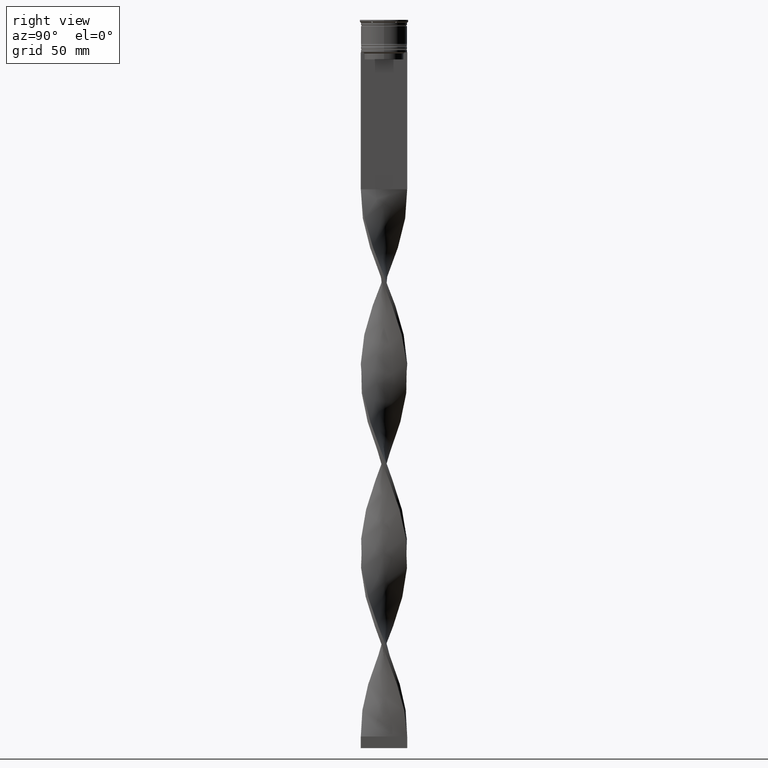
[diagram: clean part render]
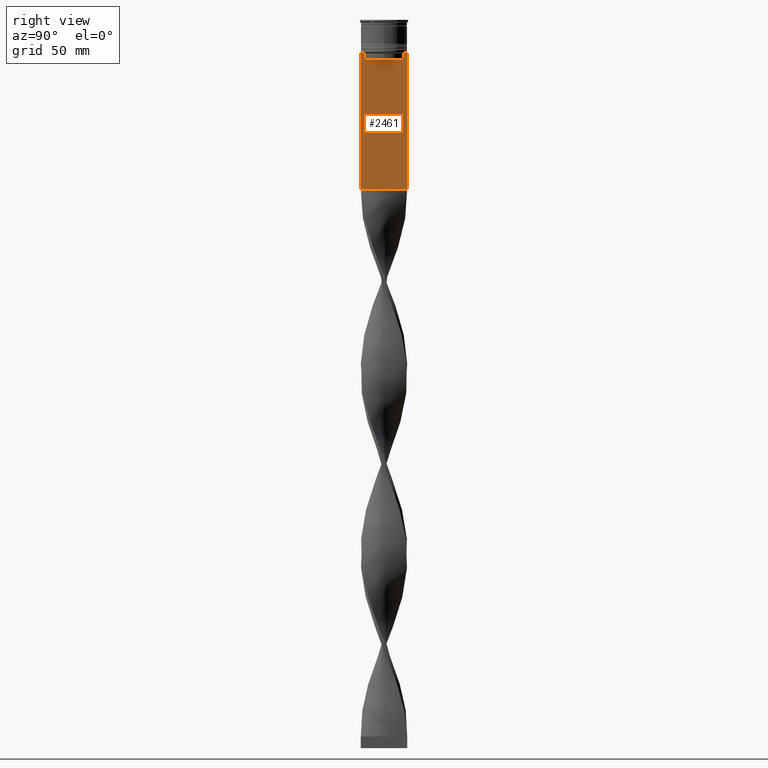
[diagram: same view with one face highlighted and labeled with its STEP entity id]
A machine part, right view. The second image highlights one B-rep face of the part: STEP entity #2461.
In plain terms, the highlighted planar face has unit normal (-1, 0, 0).
Its self-contained STEP definition (entity closure, byte-faithful):
#32 = CARTESIAN_POINT ( 'NONE',  ( 0.7500000000000001110, -8.366450860430608927, -14.50000000000000000 ) ) ;
#61 = ORIENTED_EDGE ( 'NONE', *, *, #165, .T. ) ;
#91 = CARTESIAN_POINT ( 'NONE',  ( 0.7500000000000001110, 8.533766897779925031, -14.33335221373273605 ) ) ;
#112 = CARTESIAN_POINT ( 'NONE',  ( 0.7500000000000001110, 9.999999999999998224, 6.056171120131581098 ) ) ;
#137 = EDGE_CURVE ( 'NONE', #851, #2740, #380, .T. ) ;
#149 = CARTESIAN_POINT ( 'NONE',  ( 0.7500000000000001110, -10.00000000000000533, -73.00000000000001421 ) ) ;
#155 = EDGE_CURVE ( 'NONE', #2356, #2058, #1718, .T. ) ;
#165 = EDGE_CURVE ( 'NONE', #1973, #1635, #2807, .T. ) ;
#166 = CARTESIAN_POINT ( 'NONE',  ( 0.7500000000000001110, -8.366450860430608927, -17.00000000000000000 ) ) ;
#222 = ORIENTED_EDGE ( 'NONE', *, *, #155, .T. ) ;
#265 = EDGE_LOOP ( 'NONE', ( #4197, #1391, #3905, #1926, #1566, #4239, #1360, #222, #3484, #61, #2969, #2828 ) ) ;
#302 = CARTESIAN_POINT ( 'NONE',  ( 0.7500000000000001110, -10.00000000000000533, -73.00000000000001421 ) ) ;
#347 = CARTESIAN_POINT ( 'NONE',  ( 0.7500000000000001110, 8.701063075415250481, -14.16668448247791545 ) ) ;
#380 = LINE ( 'NONE', #4269, #1487 ) ;
#455 = VECTOR ( 'NONE', #2597, 1000.000000000000000 ) ;
#504 = CARTESIAN_POINT ( 'NONE',  ( 0.7500000000000001110, 8.366450860430608927, -17.00000000000000000 ) ) ;
#576 = EDGE_CURVE ( 'NONE', #2723, #1635, #2719, .T. ) ;
#702 = CARTESIAN_POINT ( 'NONE',  ( 0.7500000000000002220, 9.999999999999998224, -73.00000000000001421 ) ) ;
#722 = EDGE_CURVE ( 'NONE', #2740, #1035, #3416, .T. ) ;
#785 = CARTESIAN_POINT ( 'NONE',  ( 0.7500000000000001110, 8.400000000000003908, -17.00000000000000000 ) ) ;
#791 = EDGE_CURVE ( 'NONE', #825, #851, #1834, .T. ) ;
#825 = VERTEX_POINT ( 'NONE', #504 ) ;
#851 = VERTEX_POINT ( 'NONE', #166 ) ;
#863 = DIRECTION ( 'NONE',  ( -1.000000000000000000, 0.000000000000000000, 0.000000000000000000 ) ) ;
#934 = CARTESIAN_POINT ( 'NONE',  ( 0.7500000000000001110, -10.00000000000000533, -14.00000000000000178 ) ) ;
#1011 = DIRECTION ( 'NONE',  ( 0.000000000000000000, -1.000000000000000000, 0.000000000000000000 ) ) ;
#1035 = VERTEX_POINT ( 'NONE', #1238 ) ;
#1187 = EDGE_CURVE ( 'NONE', #4294, #1822, #1705, .T. ) ;
#1190 = CARTESIAN_POINT ( 'NONE',  ( 0.7500000000000001110, 8.366450860430608927, -14.50000000000000000 ) ) ;
#1238 = CARTESIAN_POINT ( 'NONE',  ( 0.7500000000000001110, -8.868342573446296839, -14.00000000000000178 ) ) ;
#1324 = CARTESIAN_POINT ( 'NONE',  ( 0.7500000000000001110, 9.999999999999998224, -14.00000000000000178 ) ) ;
#1360 = ORIENTED_EDGE ( 'NONE', *, *, #1741, .T. ) ;
#1378 = DIRECTION ( 'NONE',  ( 0.000000000000000000, 0.000000000000000000, -1.000000000000000000 ) ) ;
#1391 = ORIENTED_EDGE ( 'NONE', *, *, #1187, .T. ) ;
#1428 = VECTOR ( 'NONE', #1378, 1000.000000000000000 ) ;
#1487 = VECTOR ( 'NONE', #2011, 1000.000000000000000 ) ;
#1542 = DIRECTION ( 'NONE',  ( 0.000000000000000000, -1.000000000000000000, 0.000000000000000000 ) ) ;
#1545 = CARTESIAN_POINT ( 'NONE',  ( 0.7500000000000001110, 9.871550030263739117, -14.00000000000000178 ) ) ;
#1566 = ORIENTED_EDGE ( 'NONE', *, *, #137, .T. ) ;
#1608 = LINE ( 'NONE', #2296, #4006 ) ;
#1635 = VERTEX_POINT ( 'NONE', #702 ) ;
#1670 = CARTESIAN_POINT ( 'NONE',  ( 0.7500000000000001110, -10.00000000000000533, -14.00000000000000178 ) ) ;
#1684 = CARTESIAN_POINT ( 'NONE',  ( 0.7500000000000001110, 8.366450860430608927, -14.50000000000000000 ) ) ;
#1705 = B_SPLINE_CURVE_WITH_KNOTS ( 'NONE', 3,
 ( #2671, #347, #91, #1684 ),
 .UNSPECIFIED., .F., .F.,
 ( 4, 4 ),
 ( 0.01512225952876174867, 0.01583070519299695222 ),
 .UNSPECIFIED. ) ;
#1707 = CARTESIAN_POINT ( 'NONE',  ( 0.7500000000000001110, -8.701063080777121428, -14.16668447713511725 ) ) ;
#1718 = LINE ( 'NONE', #3481, #3917 ) ;
#1741 = EDGE_CURVE ( 'NONE', #1035, #2356, #3568, .T. ) ;
#1785 = VECTOR ( 'NONE', #1542, 1000.000000000000000 ) ;
#1822 = VERTEX_POINT ( 'NONE', #1190 ) ;
#1834 = LINE ( 'NONE', #785, #1785 ) ;
#1867 = VERTEX_POINT ( 'NONE', #1545 ) ;
#1879 = DIRECTION ( 'NONE',  ( 0.000000000000000000, 0.000000000000000000, 1.000000000000000000 ) ) ;
#1926 = ORIENTED_EDGE ( 'NONE', *, *, #791, .T. ) ;
#1973 = VERTEX_POINT ( 'NONE', #302 ) ;
#2011 = DIRECTION ( 'NONE',  ( -0.000000000000000000, -0.000000000000000000, 1.000000000000000000 ) ) ;
#2058 = VERTEX_POINT ( 'NONE', #2998 ) ;
#2165 = EDGE_CURVE ( 'NONE', #2723, #1867, #3908, .T. ) ;
#2182 = FACE_OUTER_BOUND ( 'NONE', #265, .T. ) ;
#2202 = VECTOR ( 'NONE', #3286, 1000.000000000000000 ) ;
#2205 = DIRECTION ( 'NONE',  ( 0.000000000000000000, 1.000000000000000000, 0.000000000000000000 ) ) ;
#2230 = PLANE ( 'NONE',  #3654 ) ;
#2277 = DIRECTION ( 'NONE',  ( 0.000000000000000000, -1.000000000000000000, 0.000000000000000000 ) ) ;
#2290 = VECTOR ( 'NONE', #2277, 1000.000000000000000 ) ;
#2296 = CARTESIAN_POINT ( 'NONE',  ( 0.7500000000000001110, -10.00000000000000533, -14.00000000000000178 ) ) ;
#2356 = VERTEX_POINT ( 'NONE', #3400 ) ;
#2391 = CARTESIAN_POINT ( 'NONE',  ( 0.7500000000000001110, -8.868342573446296839, -14.00000000000000178 ) ) ;
#2461 = ADVANCED_FACE ( 'NONE', ( #2182 ), #2230, .F. ) ;
#2597 = DIRECTION ( 'NONE',  ( 0.000000000000000000, 0.000000000000000000, -1.000000000000000000 ) ) ;
#2666 = LINE ( 'NONE', #3899, #2202 ) ;
#2671 = CARTESIAN_POINT ( 'NONE',  ( 0.7500000000000001110, 8.868342573446296839, -14.00000000000000178 ) ) ;
#2694 = CARTESIAN_POINT ( 'NONE',  ( 0.7500000000000001110, -8.533766903463440912, -14.33335220807192023 ) ) ;
#2697 = DIRECTION ( 'NONE',  ( 0.000000000000000000, -1.000000000000000000, 0.000000000000000000 ) ) ;
#2719 = LINE ( 'NONE', #112, #1428 ) ;
#2723 = VERTEX_POINT ( 'NONE', #1324 ) ;
#2740 = VERTEX_POINT ( 'NONE', #4270 ) ;
#2797 = EDGE_CURVE ( 'NONE', #2058, #1973, #2666, .T. ) ;
#2807 = LINE ( 'NONE', #149, #3101 ) ;
#2827 = VECTOR ( 'NONE', #1011, 1000.000000000000000 ) ;
#2828 = ORIENTED_EDGE ( 'NONE', *, *, #2165, .T. ) ;
#2915 = LINE ( 'NONE', #3921, #455 ) ;
#2938 = DIRECTION ( 'NONE',  ( 0.000000000000000000, -1.000000000000000000, 0.000000000000000000 ) ) ;
#2969 = ORIENTED_EDGE ( 'NONE', *, *, #576, .F. ) ;
#2998 = CARTESIAN_POINT ( 'NONE',  ( 0.7500000000000001110, -10.00000000000000533, -14.00000000000000178 ) ) ;
#3101 = VECTOR ( 'NONE', #2205, 1000.000000000000000 ) ;
#3286 = DIRECTION ( 'NONE',  ( 0.000000000000000000, 0.000000000000000000, -1.000000000000000000 ) ) ;
#3400 = CARTESIAN_POINT ( 'NONE',  ( 0.7500000000000001110, -9.871550030263739117, -14.00000000000000178 ) ) ;
#3416 = B_SPLINE_CURVE_WITH_KNOTS ( 'NONE', 3,
 ( #32, #2694, #1707, #2391 ),
 .UNSPECIFIED., .F., .F.,
 ( 4, 4 ),
 ( 0.03866293624047253963, 0.03937282246709320616 ),
 .UNSPECIFIED. ) ;
#3467 = CARTESIAN_POINT ( 'NONE',  ( 0.7500000000000001110, 8.868342573446296839, -14.00000000000000178 ) ) ;
#3481 = CARTESIAN_POINT ( 'NONE',  ( 0.7500000000000001110, -10.00000000000000533, -14.00000000000000178 ) ) ;
#3484 = ORIENTED_EDGE ( 'NONE', *, *, #2797, .T. ) ;
#3494 = CARTESIAN_POINT ( 'NONE',  ( 0.7500000000000001110, -10.00000000000000533, 6.056171120131581098 ) ) ;
#3568 = LINE ( 'NONE', #1670, #2827 ) ;
#3654 = AXIS2_PLACEMENT_3D ( 'NONE', #3494, #863, #1879 ) ;
#3835 = EDGE_CURVE ( 'NONE', #1822, #825, #2915, .T. ) ;
#3899 = CARTESIAN_POINT ( 'NONE',  ( 0.7500000000000001110, -10.00000000000000533, 6.056171120131581098 ) ) ;
#3905 = ORIENTED_EDGE ( 'NONE', *, *, #3835, .T. ) ;
#3908 = LINE ( 'NONE', #934, #2290 ) ;
#3917 = VECTOR ( 'NONE', #2697, 1000.000000000000000 ) ;
#3921 = CARTESIAN_POINT ( 'NONE',  ( 0.7500000000000001110, 8.366450860430608927, 0.000000000000000000 ) ) ;
#3956 = EDGE_CURVE ( 'NONE', #1867, #4294, #1608, .T. ) ;
#4006 = VECTOR ( 'NONE', #2938, 1000.000000000000000 ) ;
#4197 = ORIENTED_EDGE ( 'NONE', *, *, #3956, .T. ) ;
#4239 = ORIENTED_EDGE ( 'NONE', *, *, #722, .T. ) ;
#4269 = CARTESIAN_POINT ( 'NONE',  ( 0.7500000000000001110, -8.366450860430608927, 0.000000000000000000 ) ) ;
#4270 = CARTESIAN_POINT ( 'NONE',  ( 0.7500000000000001110, -8.366450860430608927, -14.50000000000000000 ) ) ;
#4294 = VERTEX_POINT ( 'NONE', #3467 ) ;